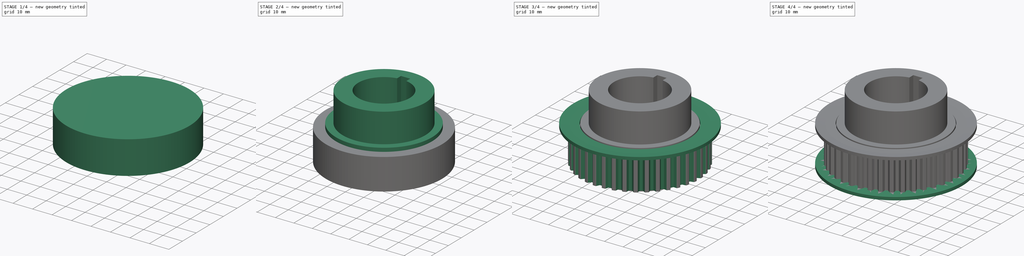
[diagram: build sequence overview — one tinted view per stage of 4, left to right]
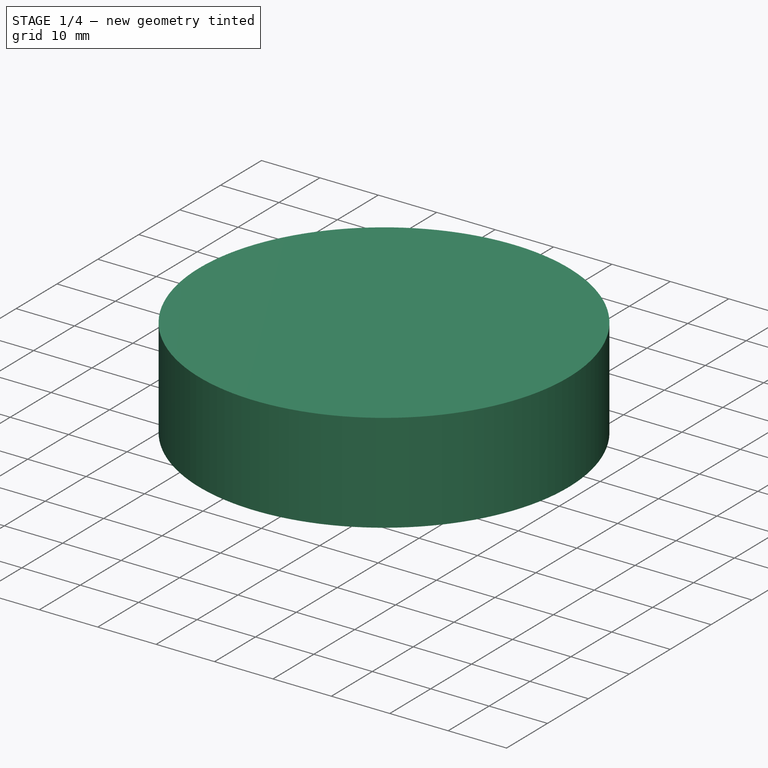
[diagram: stage 1 of 4 — iso view after this stage's code; geometry added in this stage tinted green]
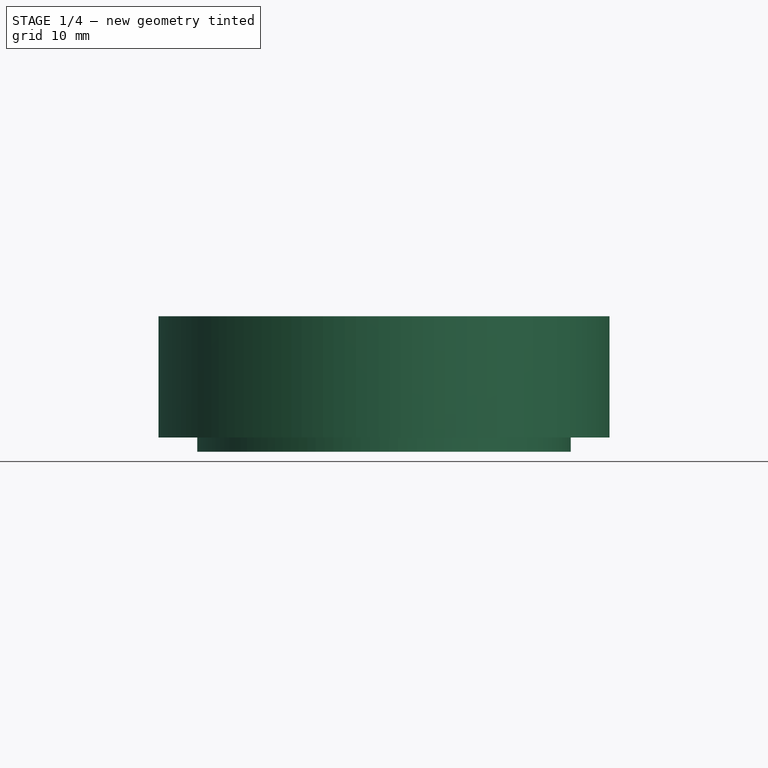
[diagram: stage 1 of 4 — front view after this stage's code; geometry added in this stage tinted green]
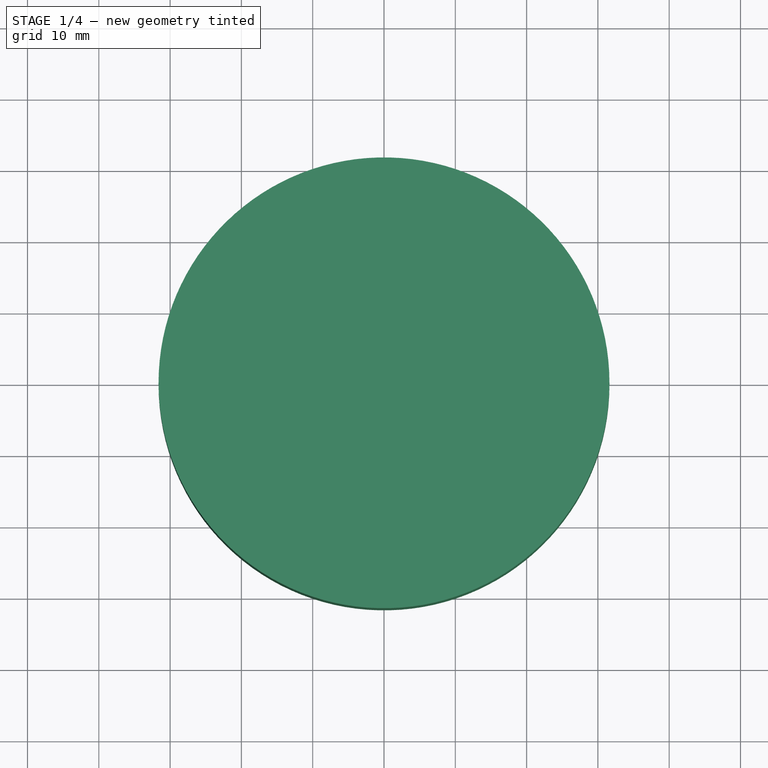
[diagram: stage 1 of 4 — top view after this stage's code; geometry added in this stage tinted green]
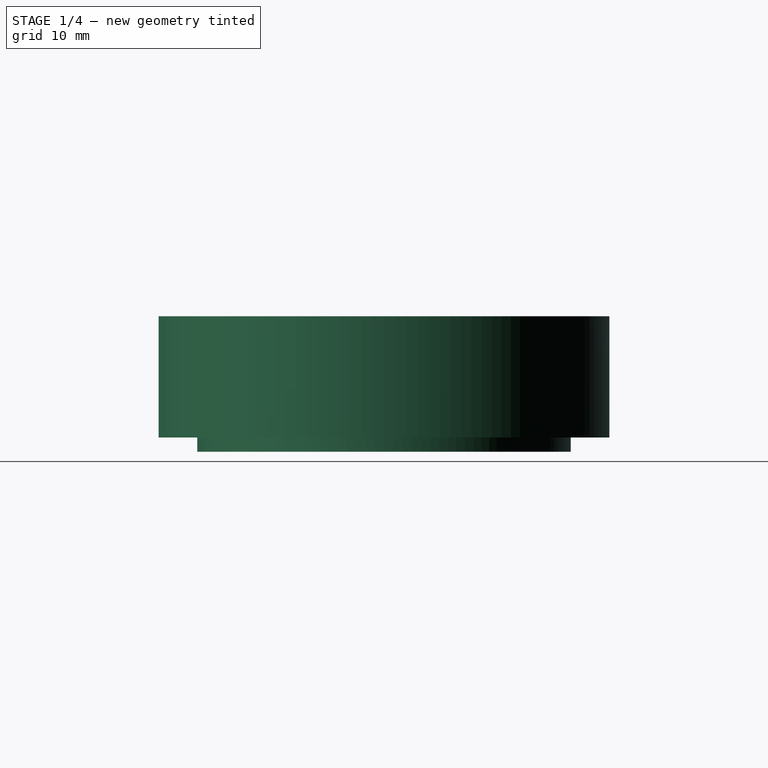
[diagram: stage 1 of 4 — right view after this stage's code; geometry added in this stage tinted green]
FCSTD DOCUMENT  (FreeCAD 0.16R5653 (Git))
Label: Spindle-pulley-5
License: CreativeCommons Attribution-ShareAlike
LicenseURL: http://creativecommons.org/licenses/by-sa/4.0/
objects: Sketcher::SketchObject×8, PartDesign::Pad×4, PartDesign::Revolution×2, PartDesign::Pocket×2, PartDesign::PolarPattern×1, Part::MultiFuse×1
note: 26 computed .brp shape members not serialized (recipe doc carries the construction recipe); baked Part::Feature solids carry a one-line shape summary decoded from their .brp

FEATURE [Sketcher::SketchObject] Sketch
  sketch-geometry (1):
    g0: Circle CenterX=0 CenterY=0 CenterZ=0 NormalX=0 NormalY=0 NormalZ=1 Radius=31.62
  constraints (2):
    c: Coincident(g0,g-1)
    c: Radius(g0) = 31.62
FEATURE [PartDesign::Pad] Pad
  Length = 17
  Length2 = 100
  Sketch = -> Sketch
  Type = 0
FEATURE [PartDesign::Pad] Pad001
  Length = 2
  Length2 = 100
  Sketch = -> Sketch004
  Type = 0
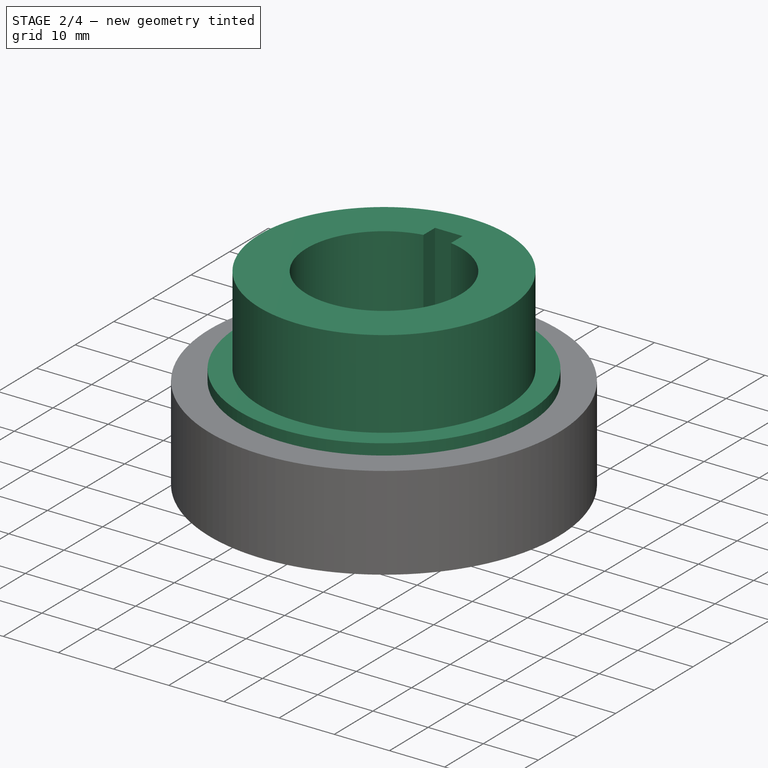
[diagram: stage 2 of 4 — iso view after this stage's code; geometry added in this stage tinted green]
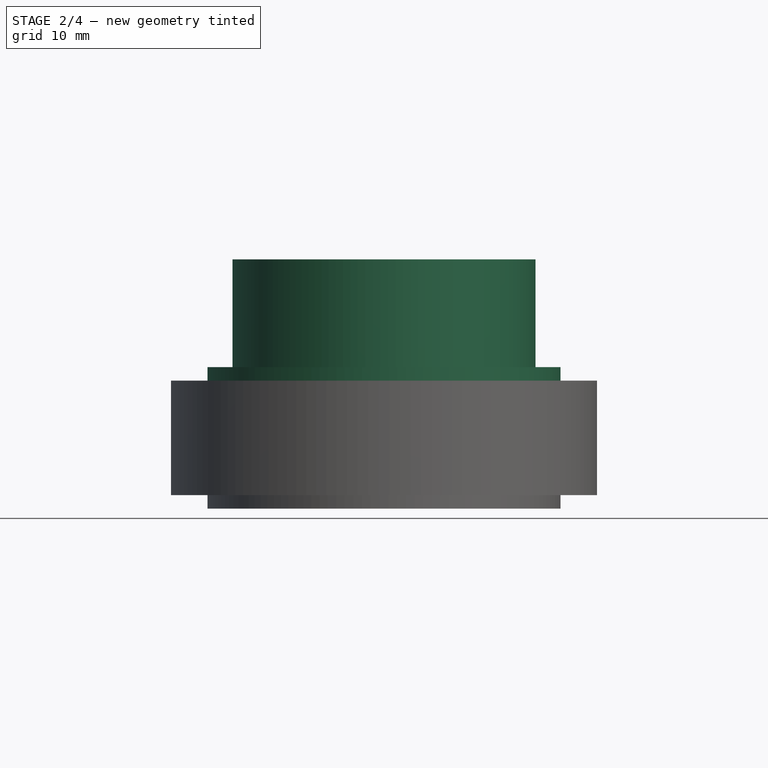
[diagram: stage 2 of 4 — front view after this stage's code; geometry added in this stage tinted green]
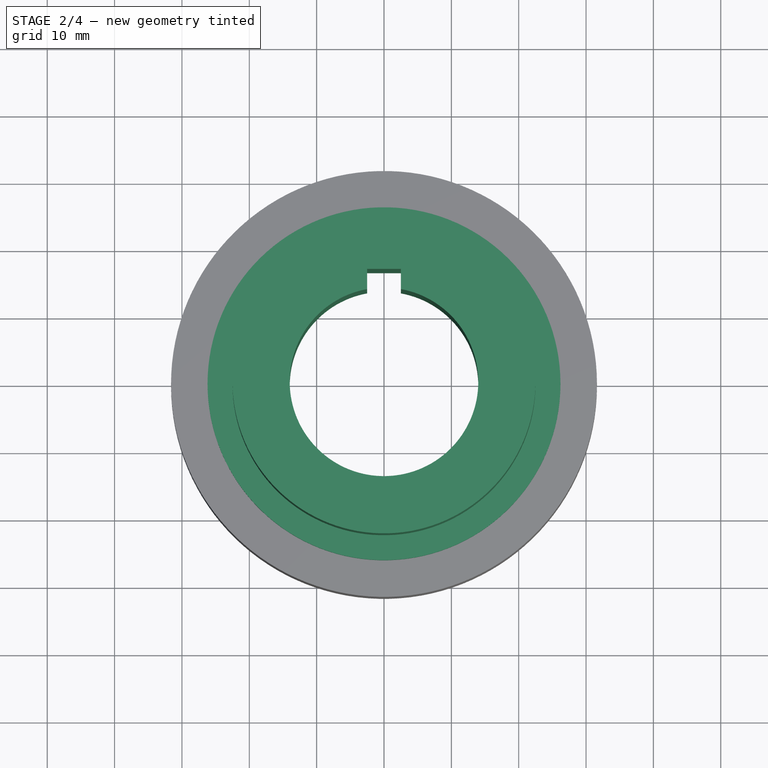
[diagram: stage 2 of 4 — top view after this stage's code; geometry added in this stage tinted green]
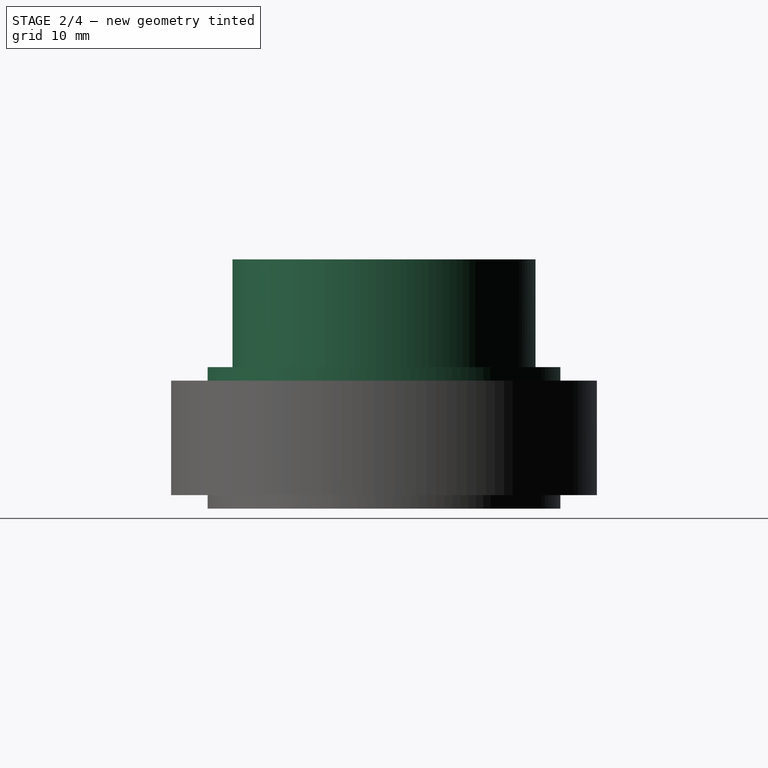
[diagram: stage 2 of 4 — right view after this stage's code; geometry added in this stage tinted green]
FEATURE [Sketcher::SketchObject] Sketch003
  Placement = pos=(0,0,17) rot=(0,0,1;0rad)
  Support = -> Pad001 [Face3]
  sketch-geometry (1):
    g0: Circle CenterX=0 CenterY=0 CenterZ=0 NormalX=0 NormalY=0 NormalZ=1 Radius=26.2
  constraints (2):
    c: Coincident(g-1,g0)
    c: Radius(g0) = 26.2
FEATURE [PartDesign::Pad] Pad002
  Length = 2
  Length2 = 100
  Sketch = -> Sketch003
  Type = 0
FEATURE [Sketcher::SketchObject] Sketch007  label="Extension"
  Placement = pos=(0,0,19) rot=(0,0,1;0rad)
  Support = -> Pad002 [Face7]
  sketch-geometry (1):
    g0: Circle CenterX=0 CenterY=0 CenterZ=0 NormalX=0 NormalY=0 NormalZ=1 Radius=22.5
  constraints (2):
    c: Coincident(g-1,g0)
    c: Radius(g0) = 22.5
FEATURE [PartDesign::Pad] Pad003
  Length = 16
  Length2 = 100
  Sketch = -> Sketch007
  Type = 0
FEATURE [Sketcher::SketchObject] Sketch001  label="Bore+key"
  Placement = pos=(0,0,-2) rot=(1,0,0;3.14159rad)
  Support = -> Pad003 [Face6]
  sketch-geometry (5):
    g0: Circle [constr] CenterX=0 CenterY=0 CenterZ=0 NormalX=0 NormalY=0 NormalZ=1 Radius=14
    g1: LineSegment StartX=2.5 StartY=-13.775 StartZ=0 EndX=2.5 EndY=-16.775 EndZ=0
    g2: LineSegment StartX=2.5 StartY=-16.775 StartZ=0 EndX=-2.5 EndY=-16.775 EndZ=0
    g3: LineSegment StartX=-2.5 StartY=-16.775 StartZ=0 EndX=-2.5 EndY=-13.775 EndZ=0
    g4: ArcOfCircle CenterX=0 CenterY=0 CenterZ=0 NormalX=0 NormalY=0 NormalZ=1 Radius=14 StartAngle=4.89192 EndAngle=10.816
  constraints (14):
    c: Coincident(g-1,g0)
    c: Radius(g0) = 14
    c: Coincident(g1,g2)
    c: Coincident(g2,g3)
    c: Horizontal(g2)
    c: Vertical(g1)
    c: Vertical(g3)
    c: Symmetric(g3,g1,g-2)
    c: DistanceX(g2,g1) = 5
    c: PointOnObject(g1,g0)
    c: DistanceY(g1,g1) = -3
    c: Coincident(g4,g-1)
    c: Coincident(g4,g1)
    c: Coincident(g4,g3)
FEATURE [PartDesign::Pocket] Pocket
  Length = 37
  Sketch = -> Sketch001
  Type = 0
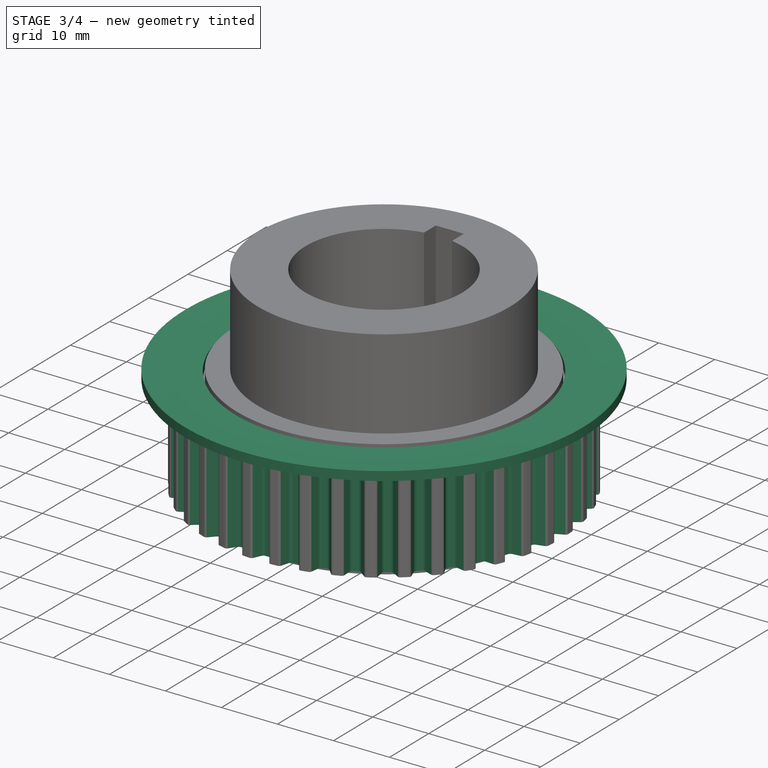
[diagram: stage 3 of 4 — iso view after this stage's code; geometry added in this stage tinted green]
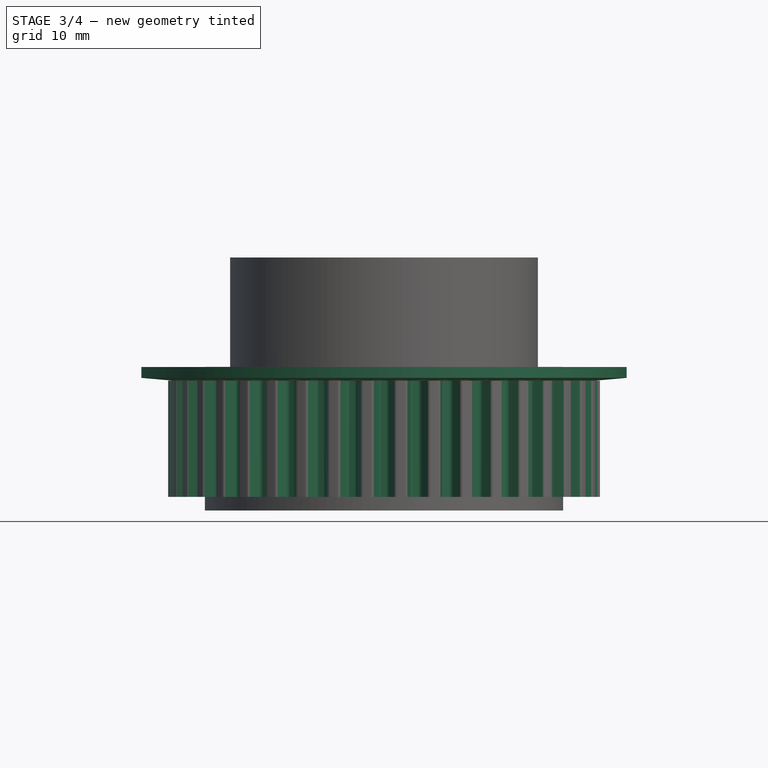
[diagram: stage 3 of 4 — front view after this stage's code; geometry added in this stage tinted green]
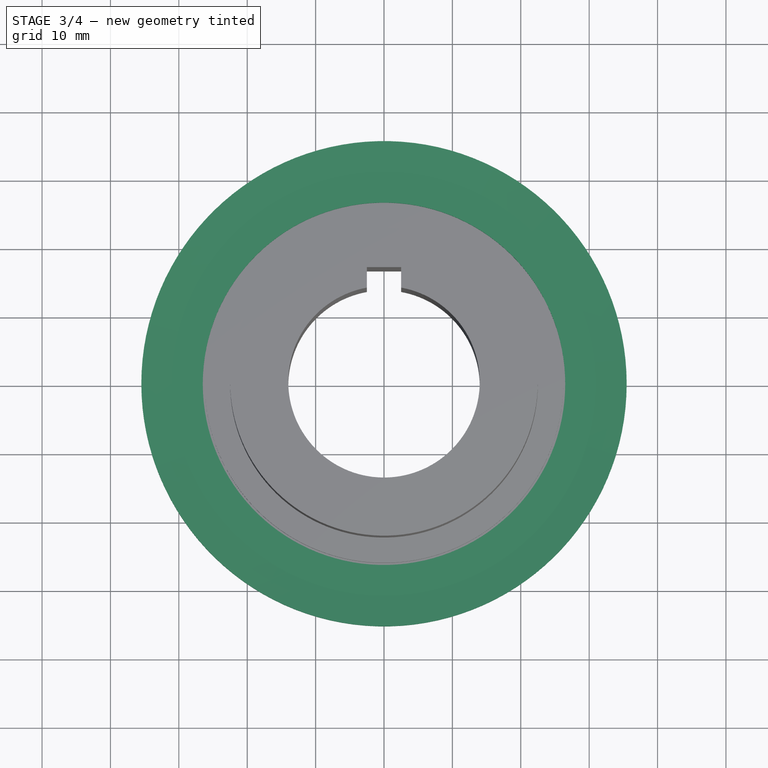
[diagram: stage 3 of 4 — top view after this stage's code; geometry added in this stage tinted green]
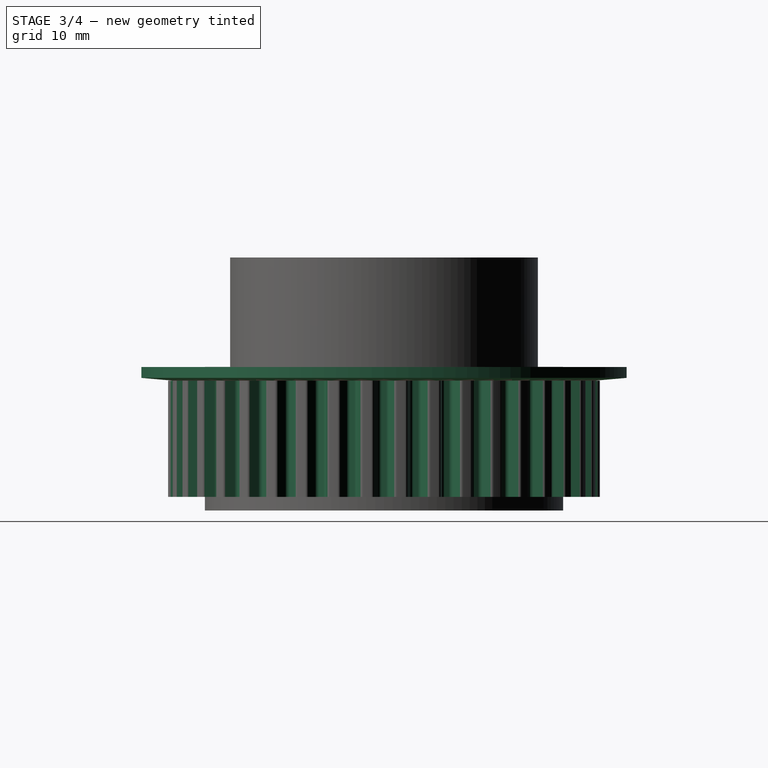
[diagram: stage 3 of 4 — right view after this stage's code; geometry added in this stage tinted green]
FEATURE [Sketcher::SketchObject] Sketch006
  Placement = pos=(0,0,0) rot=(1,0,0;1.5708rad)
  sketch-geometry (6):
    g0: LineSegment StartX=26.5 StartY=18.6 StartZ=0 EndX=31 EndY=18.6 EndZ=0
    g1: LineSegment StartX=31 StartY=18.6 StartZ=0 EndX=35.4829 EndY=18.9922 EndZ=0
    g2: LineSegment StartX=35.4829 StartY=18.9922 StartZ=0 EndX=35.4829 EndY=17.3922 EndZ=0
    g3: LineSegment StartX=35.4829 StartY=17.3922 StartZ=0 EndX=31 EndY=17 EndZ=0
    g4: LineSegment StartX=31 StartY=17 StartZ=0 EndX=26.5 EndY=17 EndZ=0
    g5: LineSegment StartX=26.5 StartY=17 StartZ=0 EndX=26.5 EndY=18.6 EndZ=0
  constraints (19):
    c: Horizontal(g0)
    c: Coincident(g0,g1)
    c: Coincident(g1,g2)
    c: Coincident(g2,g3)
    c: Coincident(g3,g4)
    c: Horizontal(g4)
    c: Coincident(g4,g5)
    c: Coincident(g0,g5)
    c: Vertical(g5)
    c: Vertical(g2)
    c: DistanceX(g-1,g0) = 26.5
    c: Equal(g4,g0)
    c: Equal(g0,g3)
    c: Equal(g3,g1)
    c: DistanceY(g5) = 1.6
    c: Equal(g5,g2)
    c: Angle(g3,g4) = 3.05433
    c: DistanceY(g-1,g4) = 17
    c: DistanceX(g-1,g0) = 31
FEATURE [PartDesign::Revolution] Revolution001
  Angle = 360
  Axis = (0,0,1)
  Base = (0,0,0)
  Placement = pos=(0,0,0) rot=(1,0,0;1.5708rad)
  ReferenceAxis = -> Sketch006 [V_Axis]
  Reversed = true
  Sketch = -> Sketch006
FEATURE [Sketcher::SketchObject] Sketch002  label="T5 tooth"
  Placement = pos=(0,0,0) rot=(1,0,0;3.14159rad)
  Support = -> Pocket [Face2]
  sketch-geometry (12):
    g0: ArcOfCircle CenterX=-1.84252 CenterY=31.16 CenterZ=0 NormalX=0 NormalY=0 NormalZ=1 Radius=0.4 StartAngle=0.436332 EndAngle=1.5708
    g1: ArcOfCircle CenterX=1.84252 CenterY=31.16 CenterZ=0 NormalX=0 NormalY=0 NormalZ=1 Radius=0.4 StartAngle=1.5708 EndAngle=2.70526
    g2: ArcOfCircle CenterX=0.324131 CenterY=30.27 CenterZ=0 NormalX=0 NormalY=0 NormalZ=1 Radius=0.6 StartAngle=4.71239 EndAngle=5.84685
    g3: LineSegment StartX=-1.48 StartY=31.329 StartZ=0 EndX=-0.867916 EndY=30.0164 EndZ=0
    g4: LineSegment StartX=1.48 StartY=31.329 StartZ=0 EndX=0.867916 EndY=30.0164 EndZ=0
    g5: LineSegment StartX=-0.324131 StartY=29.67 StartZ=0 EndX=0.324131 EndY=29.67 EndZ=0
    g6: LineSegment StartX=1.84252 StartY=31.56 StartZ=0 EndX=2.15 EndY=31.56 EndZ=0
    g7: LineSegment StartX=-2.15 StartY=32.06 StartZ=0 EndX=-2.15 EndY=31.56 EndZ=0
    g8: LineSegment StartX=-2.15 StartY=32.06 StartZ=0 EndX=2.15 EndY=32.06 EndZ=0
    g9: LineSegment StartX=2.15 StartY=32.06 StartZ=0 EndX=2.15 EndY=31.56 EndZ=0
    g10: LineSegment StartX=-2.15 StartY=31.56 StartZ=0 EndX=-1.84252 EndY=31.56 EndZ=0
    g11: ArcOfCircle CenterX=-0.324131 CenterY=30.27 CenterZ=0 NormalX=0 NormalY=0 NormalZ=1 Radius=0.6 StartAngle=3.57793 EndAngle=4.71239
  constraints (39):
    c: Coincident(g0,g3)
    c: Coincident(g0,g10)
    c: Coincident(g4,g1)
    c: Coincident(g6,g1)
    c: Coincident(g4,g2)
    c: Coincident(g5,g2)
    c: Coincident(g11,g3)
    c: Coincident(g11,g5)
    c: Coincident(g6,g9)
    c: Coincident(g8,g7)
    c: Coincident(g10,g7)
    c: Coincident(g8,g9)
    c: Equal(g2,g11)
    c: Radius(g2) = 0.6
    c: Equal(g1,g0)
    c: Radius(g1) = 0.4
    c: Tangent(g5,g2)
    c: Tangent(g11,g5)
    c: Tangent(g11,g3)
    c: Tangent(g2,g4)
    c: DistanceY(g2) = 29.67
    c: Horizontal(g10)
    c: Horizontal(g6)
    c: DistanceY(g-1,g6) = 31.56
    c: Angle(g-2,g4) = 2.70526
    c: Vertical(g7)
    c: Vertical(g9)
    c: Horizontal(g8)
    c: DistanceX(g8) = 4.3
    c: Symmetric(g7,g8,g-2)
    c: Angle(g3,g-2) = 2.70526
    c: DistanceY(g7) = 31.56
    c: DistanceX(g0,g1) = 2.96
    c: Symmetric(g0,g1,g-2)
    c: Tangent(g10,g0)
    c: Tangent(g1,g6)
    c: Tangent(g0,g3)
    c: Symmetric(g5,g2,g-2)
    c: DistanceY(g9) = -0.5
FEATURE [PartDesign::Pocket] Pocket001
  Length = 17
  Sketch = -> Sketch002
  Type = 0
FEATURE [PartDesign::PolarPattern] PolarPattern
  Angle = 360
  Axis = -> Sketch002 [N_Axis]
  Occurrences = 40
  Originals = -> [Pocket001]
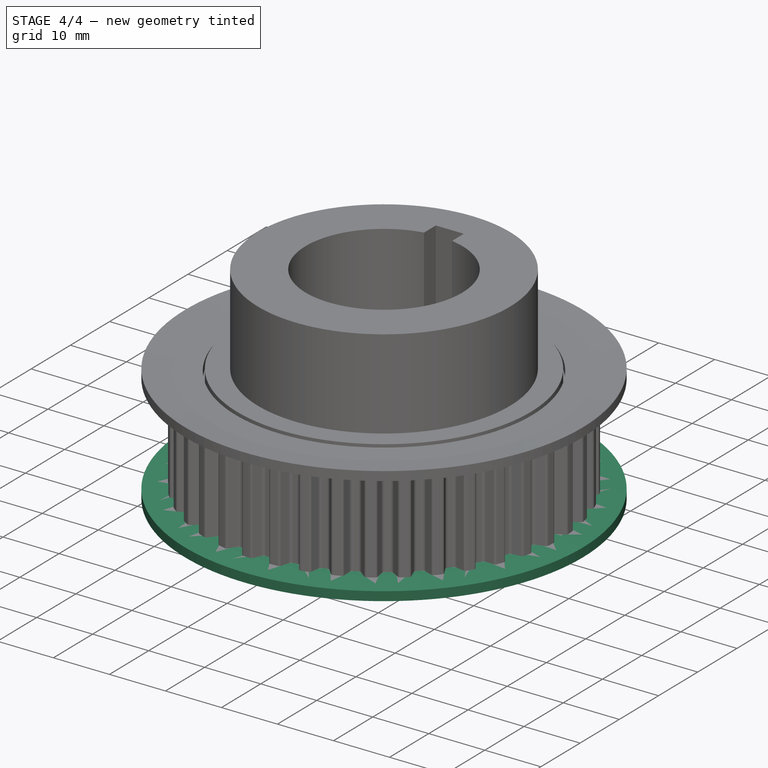
[diagram: stage 4 of 4 — iso view after this stage's code; geometry added in this stage tinted green]
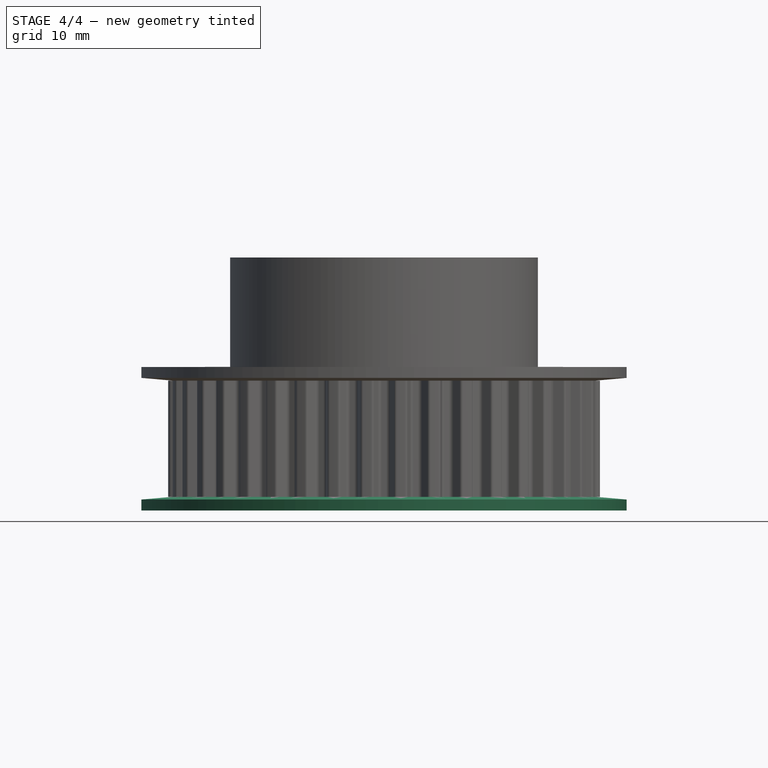
[diagram: stage 4 of 4 — front view after this stage's code; geometry added in this stage tinted green]
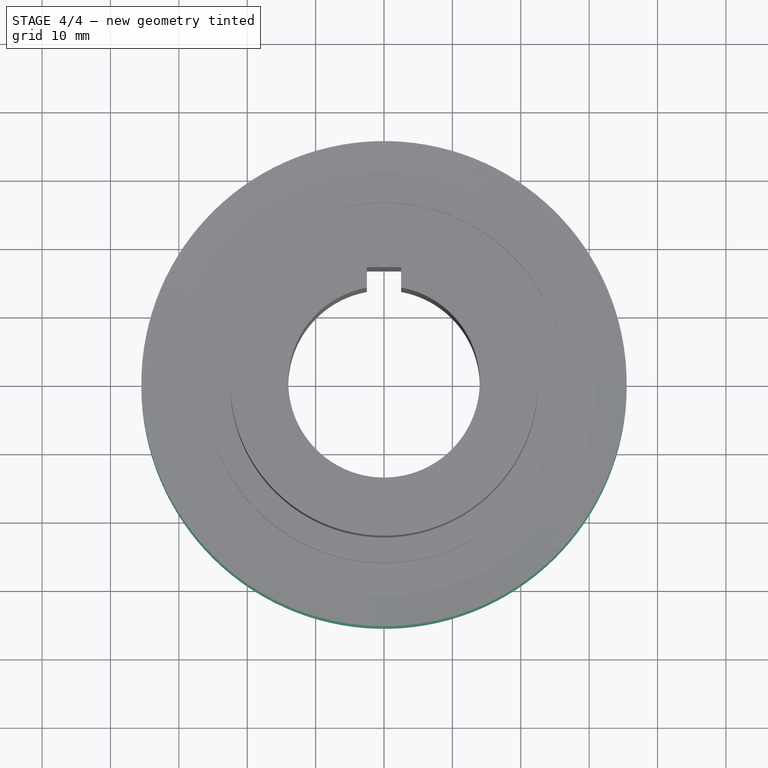
[diagram: stage 4 of 4 — top view after this stage's code; geometry added in this stage tinted green]
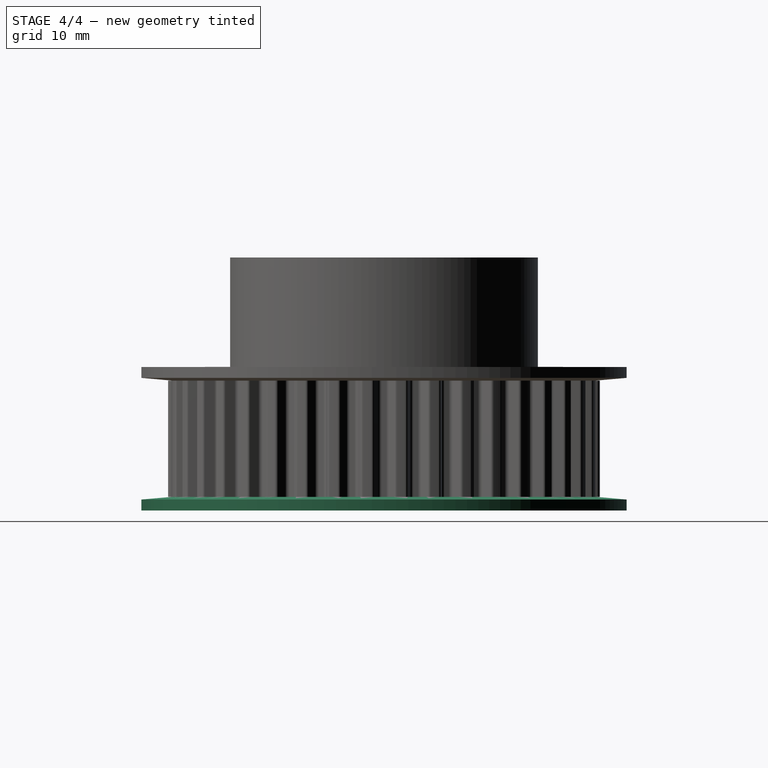
[diagram: stage 4 of 4 — right view after this stage's code; geometry added in this stage tinted green]
FEATURE [Sketcher::SketchObject] Sketch004
  Placement = pos=(0,0,0) rot=(1,0,0;3.14159rad)
  Support = -> Pad [Face2]
  sketch-geometry (1):
    g0: Circle CenterX=0 CenterY=0 CenterZ=0 NormalX=0 NormalY=0 NormalZ=1 Radius=26.2
  constraints (2):
    c: Coincident(g-1,g0)
    c: Radius(g0) = 26.2
FEATURE [Sketcher::SketchObject] Sketch005
  Placement = pos=(0,0,0) rot=(1,0,0;1.5708rad)
  sketch-geometry (6):
    g0: LineSegment StartX=26.5 StartY=0 StartZ=0 EndX=31 EndY=0 EndZ=0
    g1: LineSegment StartX=31 StartY=0 StartZ=0 EndX=35.4829 EndY=-0.392201 EndZ=0
    g2: LineSegment StartX=35.4829 StartY=-0.392201 StartZ=0 EndX=35.4829 EndY=-1.9922 EndZ=0
    g3: LineSegment StartX=35.4829 StartY=-1.9922 StartZ=0 EndX=31 EndY=-1.6 EndZ=0
    g4: LineSegment StartX=31 StartY=-1.6 StartZ=0 EndX=26.5 EndY=-1.6 EndZ=0
    g5: LineSegment StartX=26.5 StartY=-1.6 StartZ=0 EndX=26.5 EndY=0 EndZ=0
  constraints (19):
    c: Horizontal(g0)
    c: Coincident(g0,g1)
    c: Coincident(g1,g2)
    c: Coincident(g2,g3)
    c: Coincident(g3,g4)
    c: Horizontal(g4)
    c: Coincident(g4,g5)
    c: Coincident(g5,g0)
    c: PointOnObject(g0,g-1)
    c: Vertical(g5)
    c: Vertical(g2)
    c: DistanceX(g-1,g4) = 26.5
    c: Equal(g5,g2)
    c: Equal(g0,g4)
    c: Angle(g0,g1) = 3.05433
    c: Equal(g1,g3)
    c: Equal(g3,g4)
    c: DistanceY(g5) = 1.6
    c: DistanceX(g0) = 31
FEATURE [PartDesign::Revolution] Revolution
  Angle = 360
  Axis = (0,0,1)
  Base = (0,0,0)
  Placement = pos=(0,0,0) rot=(1,0,0;1.5708rad)
  ReferenceAxis = -> Sketch005 [V_Axis]
  Reversed = true
  Sketch = -> Sketch005
FEATURE [Part::MultiFuse] Fusion
  Shapes = -> [Revolution,Revolution001,PolarPattern]
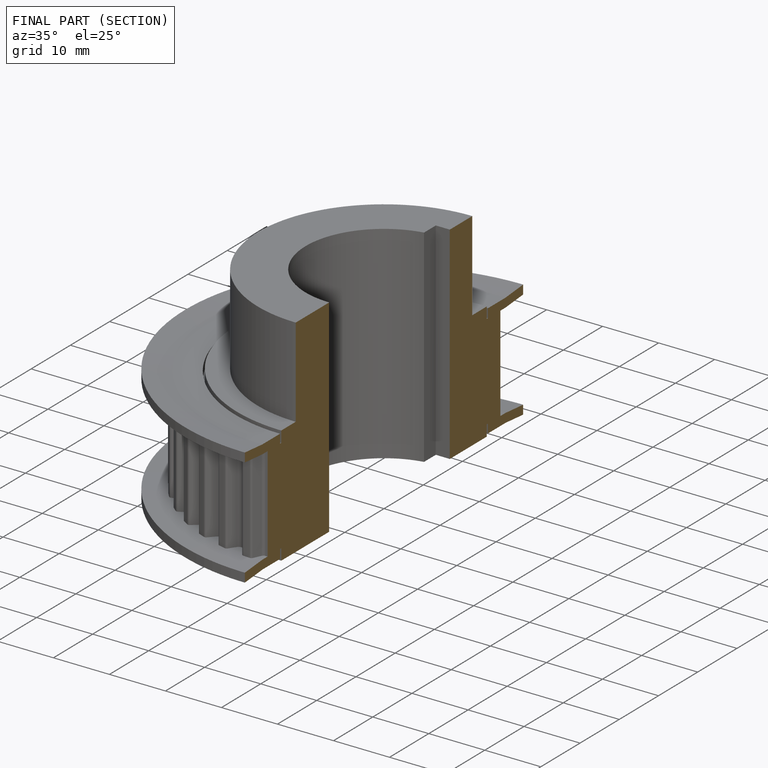
[diagram: finished part — half-section view (interior)]
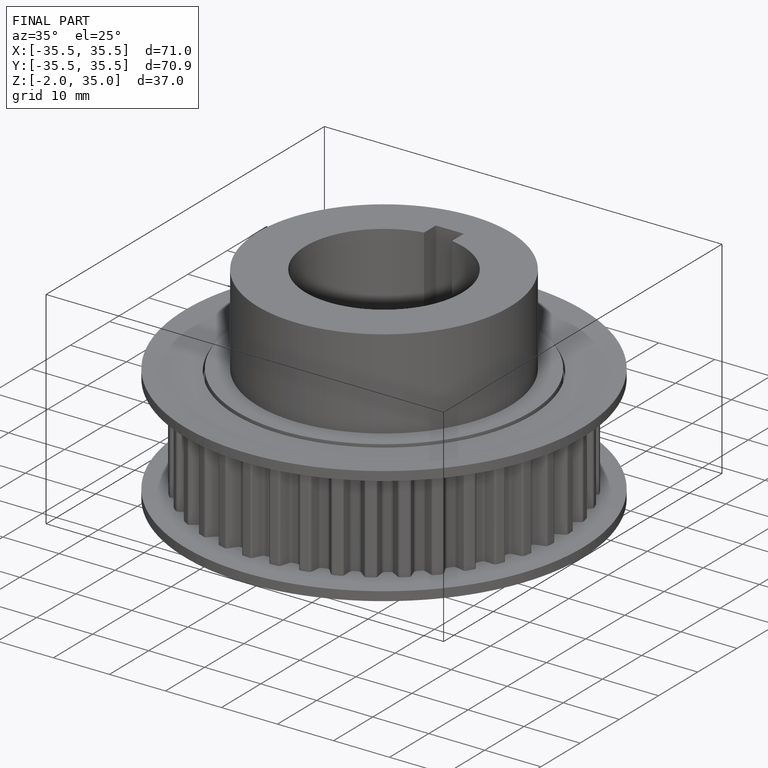
[diagram: finished part — iso view with bounding-box wireframe]
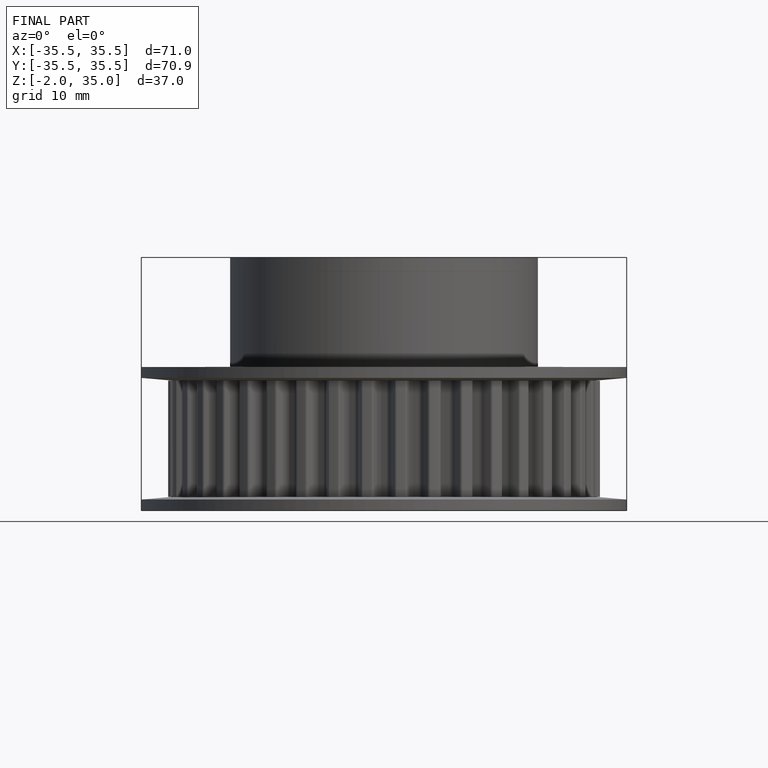
[diagram: finished part — front view with bounding-box wireframe]
